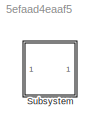
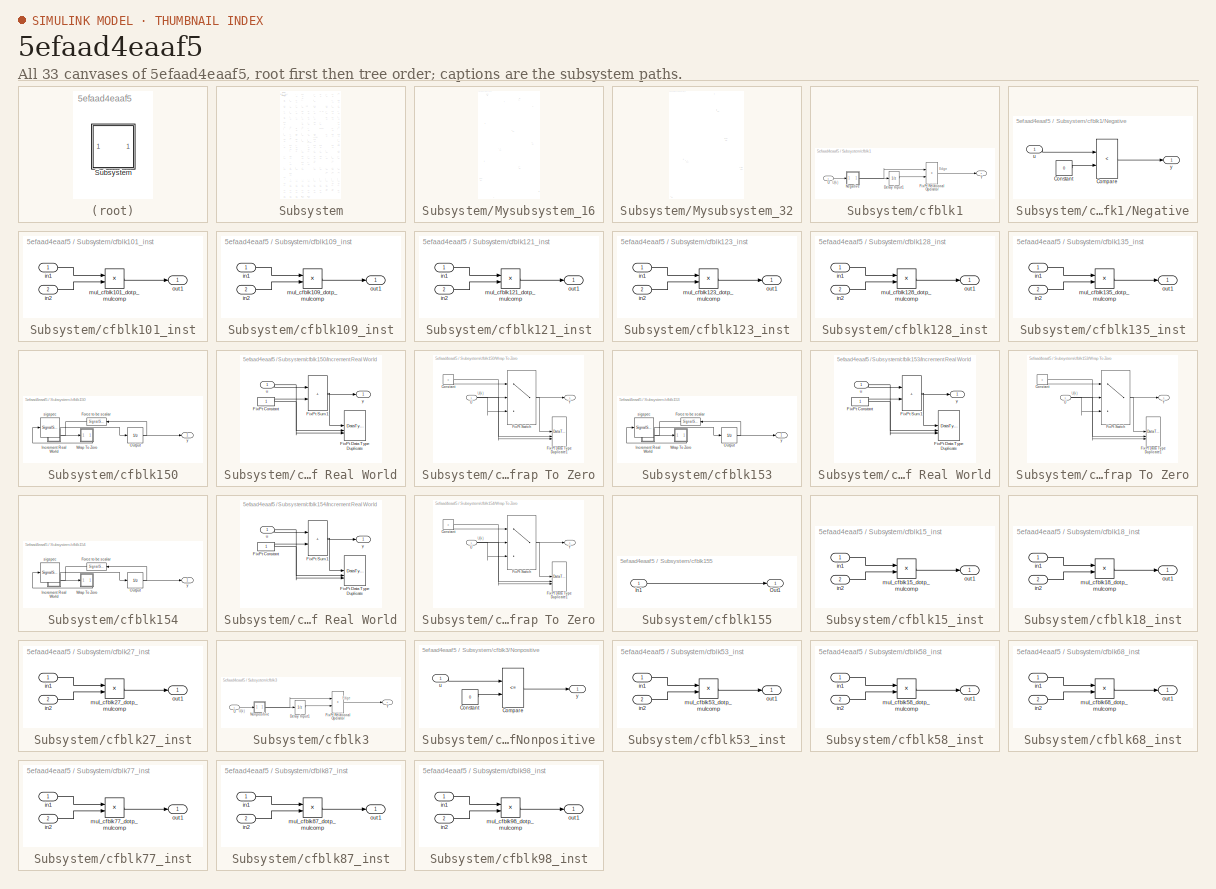
[diagram: thumbnail index - all 33 canvases of the model, root first then tree order]
MODEL slx_5efaad4eaaf5
KIND model
CONFIG AbsTol = auto
CONFIG EnableMultiTasking = off
CONFIG FixedStep = auto
CONFIG MaxStep = auto
CONFIG MinStep = auto
CONFIG RelTol = 1e-3
CONFIG SampleTimeConstraint = Unconstrained
CONFIG SolverName = VariableStepAuto
CONFIG StartTime = 0.0
CONFIG StopTime = 10.0
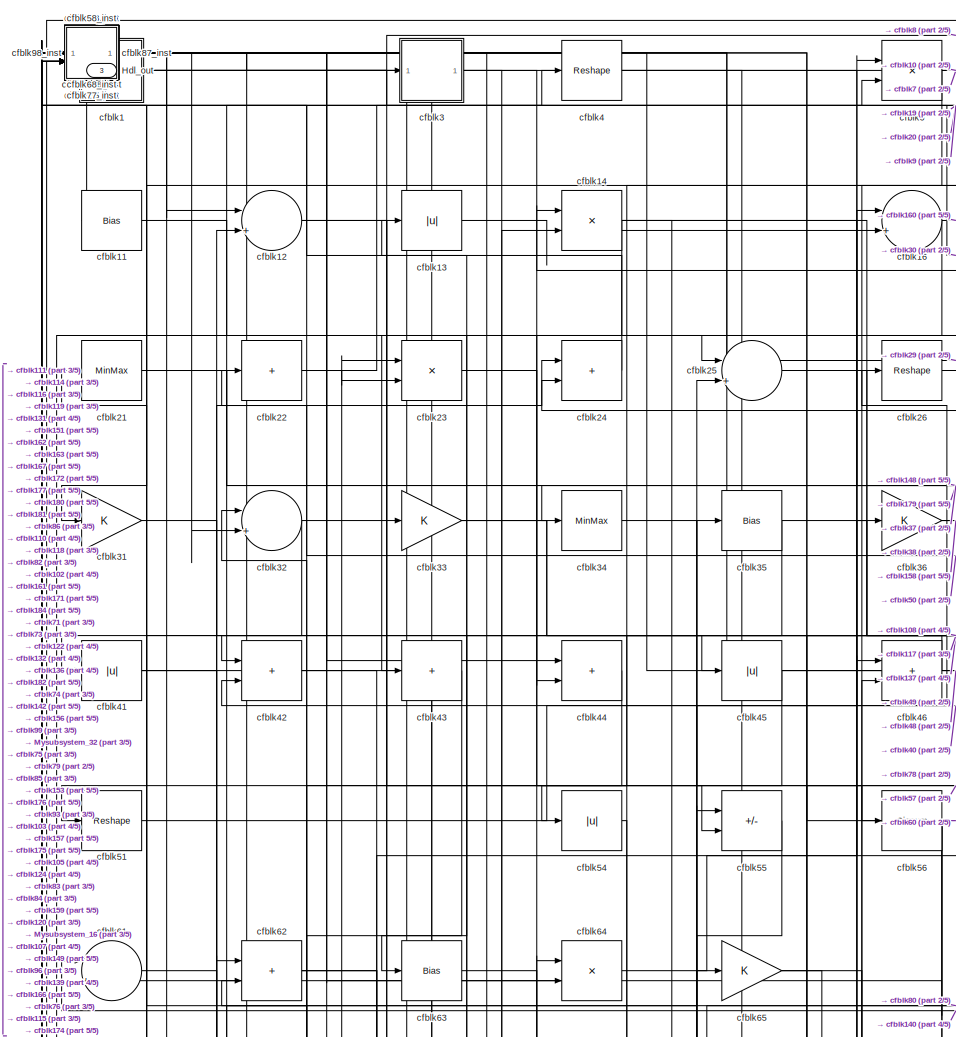
[diagram: Subsystem - part 1/5, top left region]
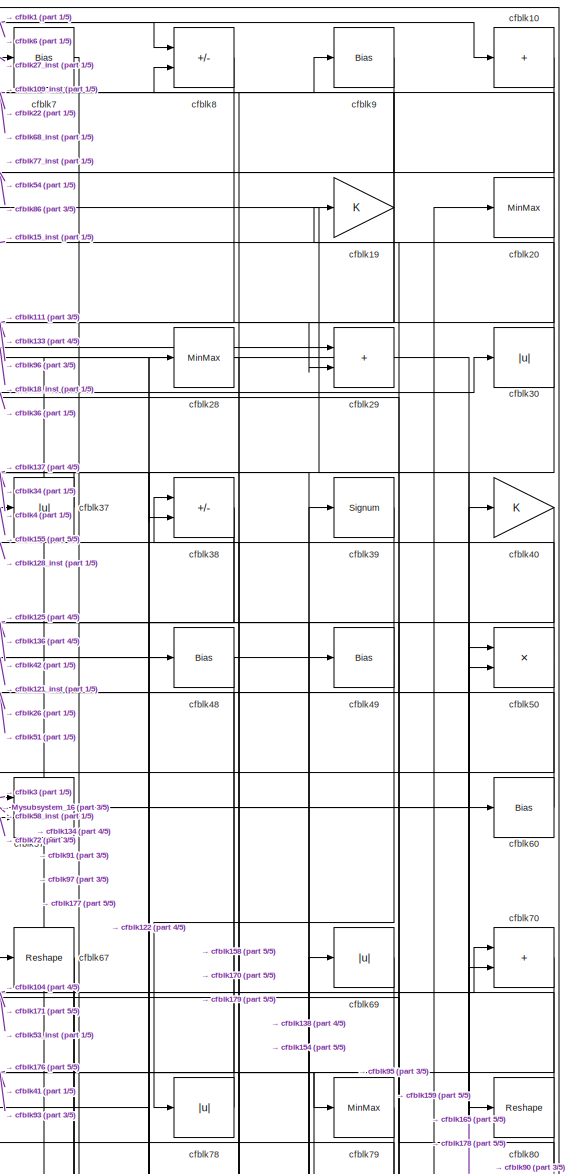
[diagram: Subsystem - part 2/5, top right region]
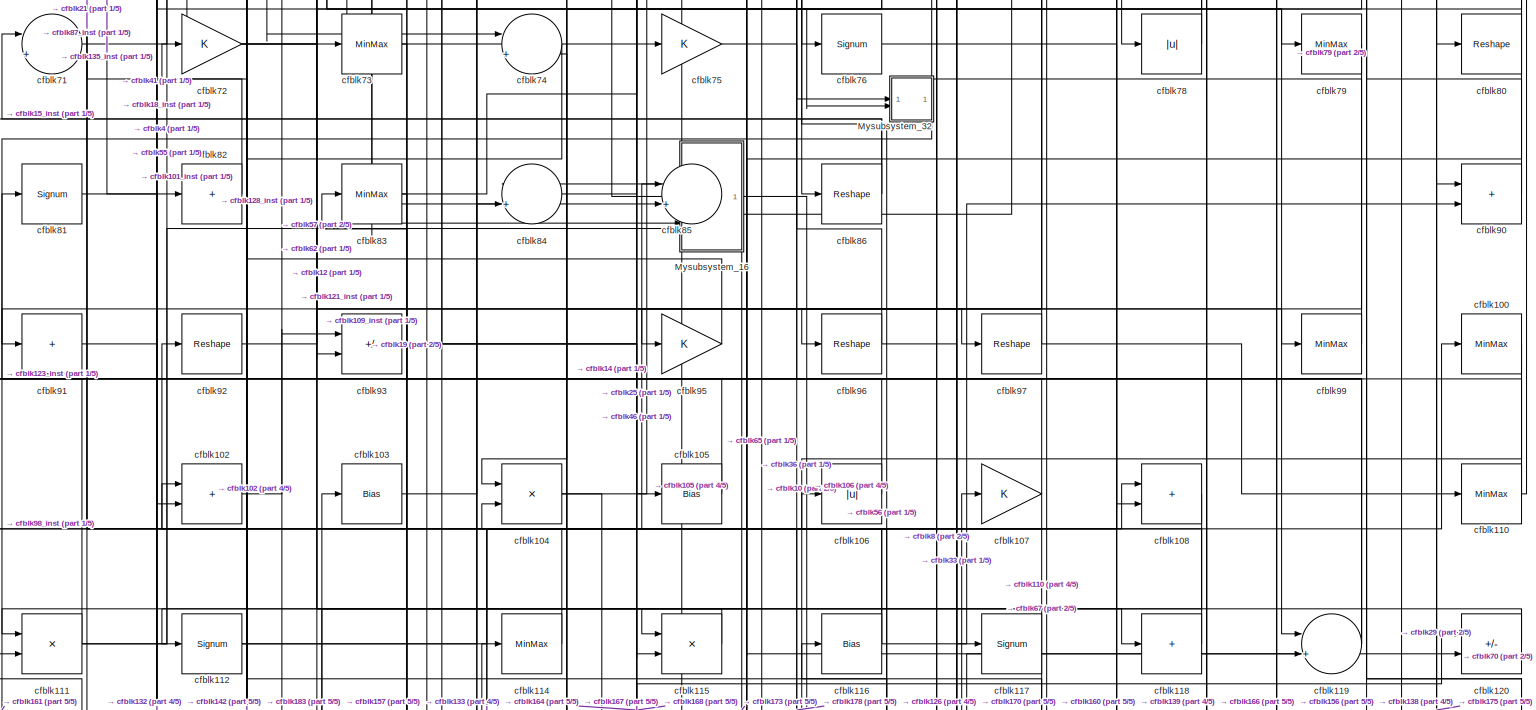
[diagram: Subsystem - part 3/5, full width, middle band]
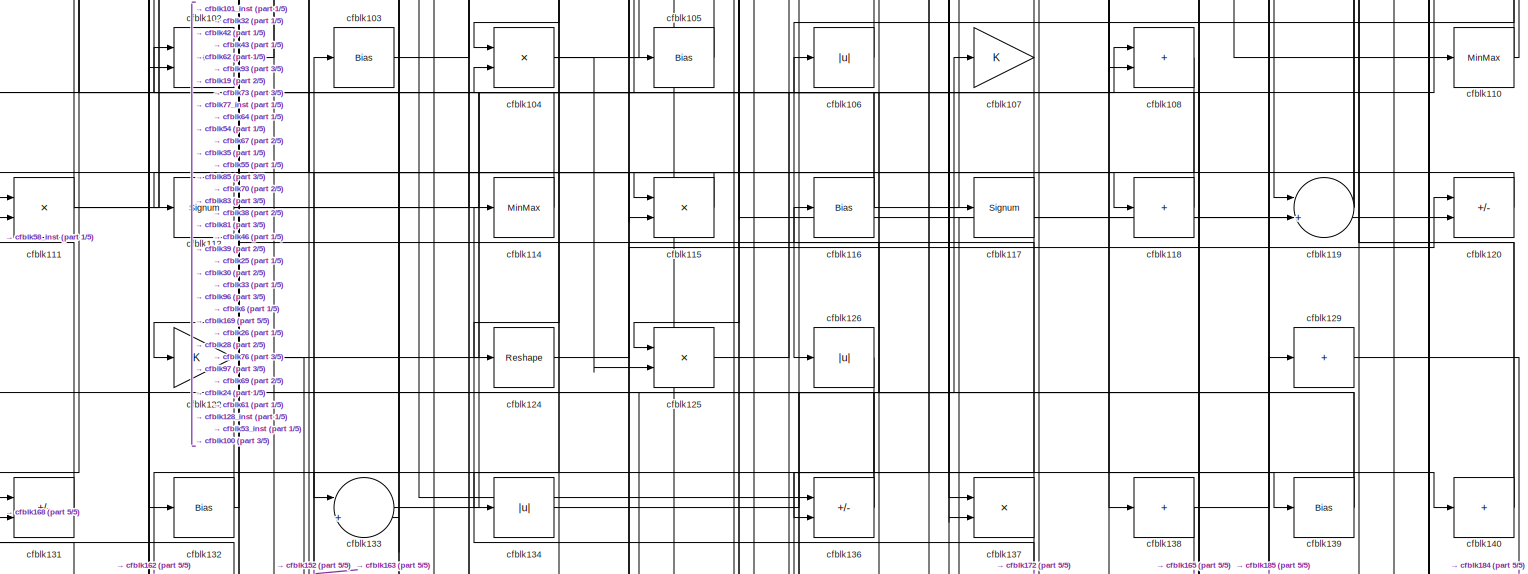
[diagram: Subsystem - part 4/5, full width, middle band]
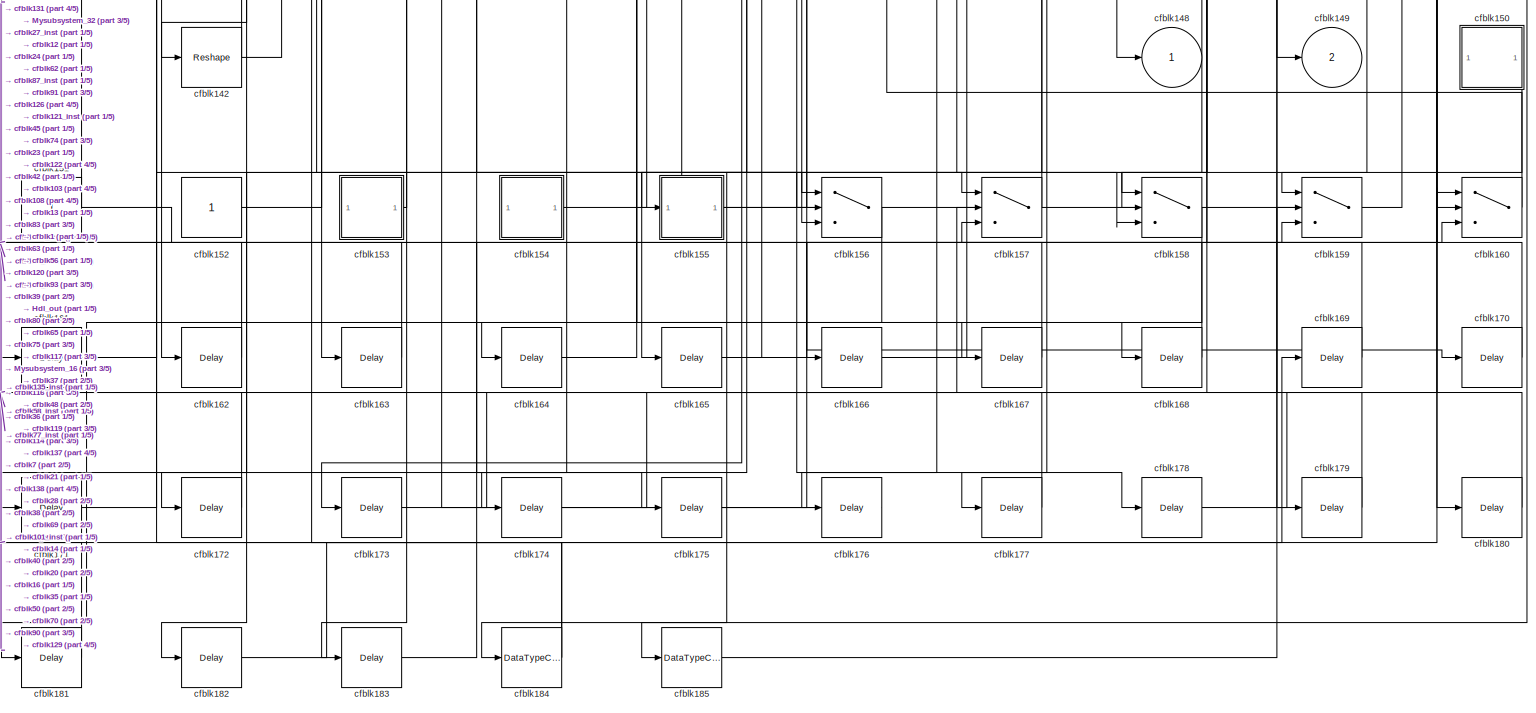
[diagram: Subsystem - part 5/5, full width, bottom band]
BLOCK [SubSystem] Subsystem
BLOCK [Outport] Subsystem/Hdl_out
  OutDataTypeStr = uint8
  Port = 3
  SampleTime = 1
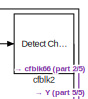
[diagram: Subsystem/Mysubsystem_16 - part 1/5, top left region]
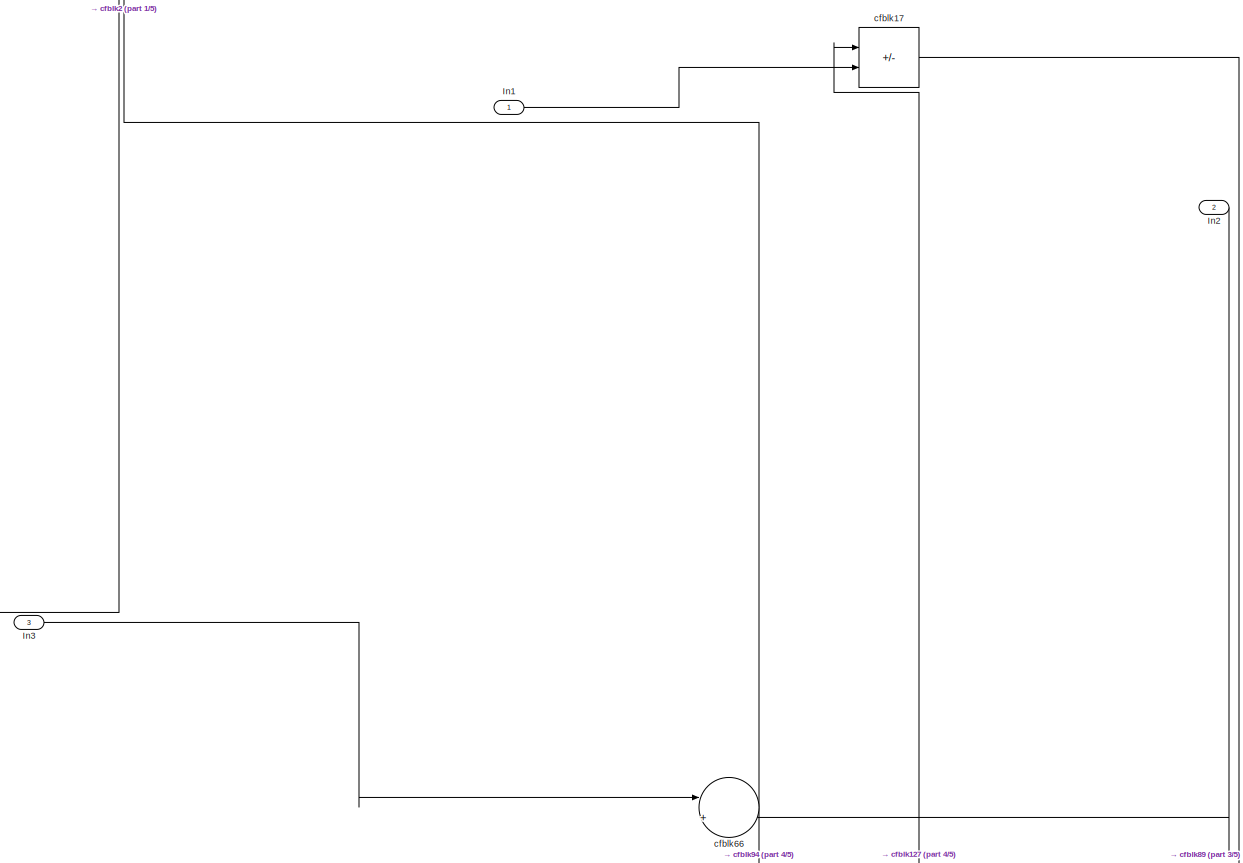
[diagram: Subsystem/Mysubsystem_16 - part 2/5, full width, top band]
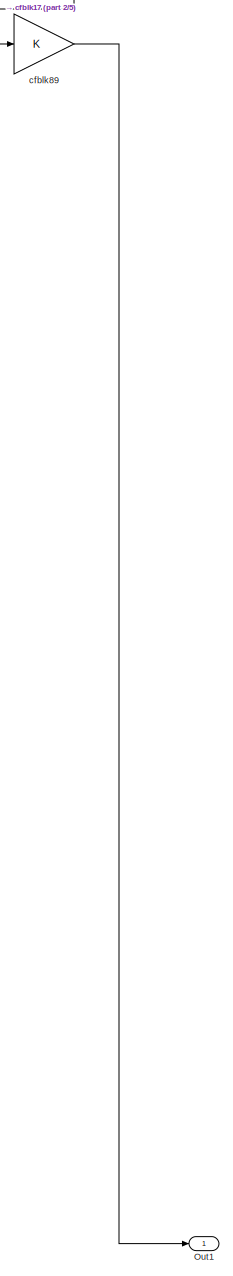
[diagram: Subsystem/Mysubsystem_16 - part 3/5, bottom right region]
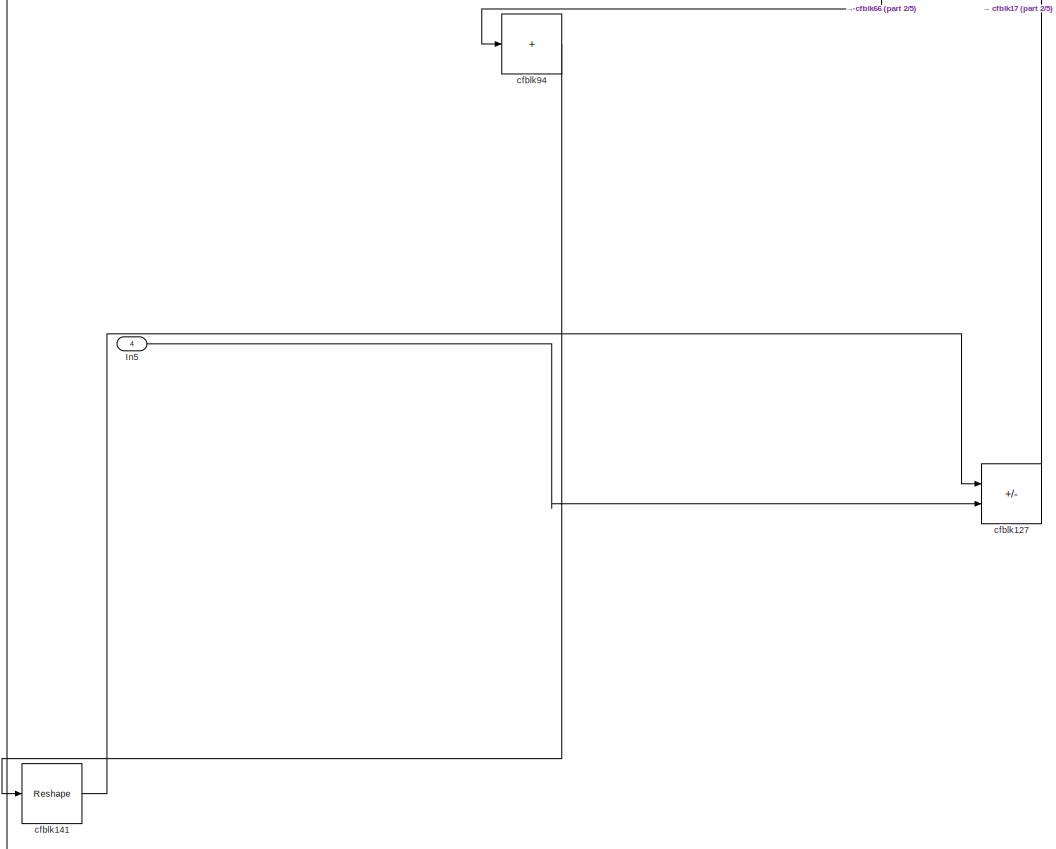
[diagram: Subsystem/Mysubsystem_16 - part 4/5, bottom center region]
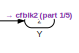
[diagram: Subsystem/Mysubsystem_16 - part 5/5, bottom left region]
BLOCK [SubSystem] Subsystem/Mysubsystem_16
BLOCK [Inport] Subsystem/Mysubsystem_16/In1
  OutDataTypeStr = uint8
  PortDimensions = 1
  SampleTime = 1
BLOCK [Inport] Subsystem/Mysubsystem_16/In2
  OutDataTypeStr = uint8
  Port = 2
  PortDimensions = 1
  SampleTime = 1
BLOCK [Inport] Subsystem/Mysubsystem_16/In3
  OutDataTypeStr = uint8
  Port = 3
  PortDimensions = 1
  SampleTime = 1
BLOCK [Inport] Subsystem/Mysubsystem_16/In5
  OutDataTypeStr = uint8
  Port = 4
  PortDimensions = 1
  SampleTime = 1
BLOCK [Outport] Subsystem/Mysubsystem_16/Out1
  SampleTime = 1
BLOCK [Outport] Subsystem/Mysubsystem_16/Y
  Port = 2
  SampleTime = 1
BLOCK [Sum] Subsystem/Mysubsystem_16/cfblk127
  IconShape = rectangular
  Inputs = +-
BLOCK [Reshape] Subsystem/Mysubsystem_16/cfblk141
BLOCK [Sum] Subsystem/Mysubsystem_16/cfblk17
  IconShape = rectangular
  Inputs = +-
BLOCK [Reference] Subsystem/Mysubsystem_16/cfblk2  REF=simulink/Logic and Bit
Operations/Detect
Change
  LibrarySourceBlock = hdlsllib/Logic and Bit\nOperations/Detect\nChange
  SourceBlock = simulink/Logic and Bit\nOperations/Detect\nChange
  SourceType = Detect Change
BLOCK [Sum] Subsystem/Mysubsystem_16/cfblk66
  Inputs = |++
BLOCK [Gain] Subsystem/Mysubsystem_16/cfblk89
BLOCK [Sum] Subsystem/Mysubsystem_16/cfblk94
  IconShape = rectangular
  Inputs = +
BLOCK [SubSystem] Subsystem/Mysubsystem_32
BLOCK [Inport] Subsystem/Mysubsystem_32/In1
  OutDataTypeStr = uint8
  PortDimensions = 1
  SampleTime = 1
BLOCK [Inport] Subsystem/Mysubsystem_32/In2
  OutDataTypeStr = uint8
  Port = 2
  PortDimensions = 1
  SampleTime = 1
BLOCK [Outport] Subsystem/Mysubsystem_32/Out1
  SampleTime = 1
BLOCK [Sum] Subsystem/Mysubsystem_32/cfblk113
  IconShape = rectangular
  Inputs = +
BLOCK [Signum] Subsystem/Mysubsystem_32/cfblk130
BLOCK [Sum] Subsystem/Mysubsystem_32/cfblk47
  Inputs = |++
BLOCK [Reshape] Subsystem/Mysubsystem_32/cfblk88
BLOCK [SubSystem] Subsystem/cfblk1
BLOCK [UnitDelay] Subsystem/cfblk1/Delay Input1
  Description = Store in Global RAM
  DisableCoverage = on
  HasFrameUpgradeWarning = on
  InitialCondition = vinit
  SampleTime = -1
BLOCK [RelationalOperator] Subsystem/cfblk1/FixPt Relational Operator
  InputSameDT = off
  Operator = >
  OutDataTypeStr = fixdt(0, 8)
  ZeroCross = off
BLOCK [SubSystem] Subsystem/cfblk1/Negative
BLOCK [RelationalOperator] Subsystem/cfblk1/Negative/Compare
  Operator = <
  OutDataTypeStr = boolean
  ZeroCross = off
BLOCK [Constant] Subsystem/cfblk1/Negative/Constant
  DisableCoverage = on
  OutDataTypeStr = Inherit: Inherit via back propagation
  PreserveConstantTs = on
  SampleTime = -1
  Value = 0
BLOCK [Inport] Subsystem/cfblk1/Negative/u
  OutDataTypeStr = uint8
  SampleTime = 1
BLOCK [Outport] Subsystem/cfblk1/Negative/y
  SampleTime = 1
BLOCK [Inport] Subsystem/cfblk1/U
  OutDataTypeStr = uint8
  SampleTime = 1
BLOCK [Outport] Subsystem/cfblk1/Y
  SampleTime = 1
BLOCK [Sum] Subsystem/cfblk10
  IconShape = rectangular
  Inputs = +
  OutDataTypeStr = uint8
BLOCK [MinMax] Subsystem/cfblk100
  OutDataTypeStr = uint8
BLOCK [SubSystem] Subsystem/cfblk101_inst
BLOCK [Inport] Subsystem/cfblk101_inst/in1
  OutDataTypeStr = uint8
  SampleTime = 1
BLOCK [Inport] Subsystem/cfblk101_inst/in2
  OutDataTypeStr = uint8
  Port = 2
  SampleTime = 1
BLOCK [Product] Subsystem/cfblk101_inst/mul_cfblk101_dotp_mulcomp
  Inputs = **
  OutDataTypeStr = uint8
  SampleTime = 1
BLOCK [Outport] Subsystem/cfblk101_inst/out1
  OutDataTypeStr = uint8
  SampleTime = 1
BLOCK [Sum] Subsystem/cfblk102
  IconShape = rectangular
  OutDataTypeStr = uint8
BLOCK [Bias] Subsystem/cfblk103
  Bias = 0.0
  SaturateOnIntegerOverflow = off
BLOCK [Product] Subsystem/cfblk104
  Inputs = */
  OutDataTypeStr = uint8
  RndMeth = Zero
  SaturateOnIntegerOverflow = on
BLOCK [Bias] Subsystem/cfblk105
  Bias = 0.0
  SaturateOnIntegerOverflow = off
BLOCK [Abs] Subsystem/cfblk106
  OutDataTypeStr = uint8
  SaturateOnIntegerOverflow = off
BLOCK [Gain] Subsystem/cfblk107
  OutDataTypeStr = uint8
BLOCK [Sum] Subsystem/cfblk108
  IconShape = rectangular
  OutDataTypeStr = uint8
BLOCK [SubSystem] Subsystem/cfblk109_inst
BLOCK [Inport] Subsystem/cfblk109_inst/in1
  OutDataTypeStr = uint8
  SampleTime = 1
BLOCK [Inport] Subsystem/cfblk109_inst/in2
  OutDataTypeStr = uint8
  Port = 2
  SampleTime = 1
BLOCK [Product] Subsystem/cfblk109_inst/mul_cfblk109_dotp_mulcomp
  Inputs = **
  OutDataTypeStr = uint8
  SampleTime = 1
BLOCK [Outport] Subsystem/cfblk109_inst/out1
  OutDataTypeStr = uint8
  SampleTime = 1
BLOCK [Bias] Subsystem/cfblk11
  Bias = 0.0
  SaturateOnIntegerOverflow = off
BLOCK [MinMax] Subsystem/cfblk110
  OutDataTypeStr = uint8
BLOCK [Product] Subsystem/cfblk111
  Inputs = */
  OutDataTypeStr = uint8
  RndMeth = Zero
  SaturateOnIntegerOverflow = on
BLOCK [Signum] Subsystem/cfblk112
BLOCK [MinMax] Subsystem/cfblk114
  OutDataTypeStr = uint8
BLOCK [Product] Subsystem/cfblk115
  Inputs = */
  OutDataTypeStr = uint8
  RndMeth = Zero
  SaturateOnIntegerOverflow = on
BLOCK [Bias] Subsystem/cfblk116
  Bias = 0.0
  SaturateOnIntegerOverflow = off
BLOCK [Signum] Subsystem/cfblk117
BLOCK [Sum] Subsystem/cfblk118
  IconShape = rectangular
  Inputs = +
  OutDataTypeStr = uint8
BLOCK [Sum] Subsystem/cfblk119
  Inputs = |++
  OutDataTypeStr = uint8
BLOCK [Sum] Subsystem/cfblk12
  Inputs = |++
  OutDataTypeStr = uint8
BLOCK [Sum] Subsystem/cfblk120
  IconShape = rectangular
  Inputs = +-
  OutDataTypeStr = uint8
BLOCK [SubSystem] Subsystem/cfblk121_inst
BLOCK [Inport] Subsystem/cfblk121_inst/in1
  OutDataTypeStr = uint8
  SampleTime = 1
BLOCK [Inport] Subsystem/cfblk121_inst/in2
  OutDataTypeStr = uint8
  Port = 2
  SampleTime = 1
BLOCK [Product] Subsystem/cfblk121_inst/mul_cfblk121_dotp_mulcomp
  Inputs = **
  OutDataTypeStr = uint8
  SampleTime = 1
BLOCK [Outport] Subsystem/cfblk121_inst/out1
  OutDataTypeStr = uint8
  SampleTime = 1
BLOCK [Gain] Subsystem/cfblk122
  OutDataTypeStr = uint8
BLOCK [SubSystem] Subsystem/cfblk123_inst
BLOCK [Inport] Subsystem/cfblk123_inst/in1
  OutDataTypeStr = uint8
  SampleTime = 1
BLOCK [Inport] Subsystem/cfblk123_inst/in2
  OutDataTypeStr = uint8
  Port = 2
  SampleTime = 1
BLOCK [Product] Subsystem/cfblk123_inst/mul_cfblk123_dotp_mulcomp
  Inputs = **
  OutDataTypeStr = uint8
  SampleTime = 1
BLOCK [Outport] Subsystem/cfblk123_inst/out1
  OutDataTypeStr = uint8
  SampleTime = 1
BLOCK [Reshape] Subsystem/cfblk124
BLOCK [Product] Subsystem/cfblk125
  Inputs = */
  OutDataTypeStr = uint8
  RndMeth = Zero
  SaturateOnIntegerOverflow = on
BLOCK [Abs] Subsystem/cfblk126
  OutDataTypeStr = uint8
  SaturateOnIntegerOverflow = off
BLOCK [SubSystem] Subsystem/cfblk128_inst
BLOCK [Inport] Subsystem/cfblk128_inst/in1
  OutDataTypeStr = uint8
  SampleTime = 1
BLOCK [Inport] Subsystem/cfblk128_inst/in2
  OutDataTypeStr = uint8
  Port = 2
  SampleTime = 1
BLOCK [Product] Subsystem/cfblk128_inst/mul_cfblk128_dotp_mulcomp
  Inputs = **
  OutDataTypeStr = uint8
  SampleTime = 1
BLOCK [Outport] Subsystem/cfblk128_inst/out1
  OutDataTypeStr = uint8
  SampleTime = 1
BLOCK [Sum] Subsystem/cfblk129
  IconShape = rectangular
  Inputs = +
  OutDataTypeStr = uint8
BLOCK [Abs] Subsystem/cfblk13
  OutDataTypeStr = uint8
  SaturateOnIntegerOverflow = off
BLOCK [Sum] Subsystem/cfblk131
  IconShape = rectangular
  Inputs = +-
  OutDataTypeStr = uint8
BLOCK [Bias] Subsystem/cfblk132
  Bias = 0.0
  SaturateOnIntegerOverflow = off
BLOCK [Sum] Subsystem/cfblk133
  Inputs = |++
  OutDataTypeStr = uint8
BLOCK [Abs] Subsystem/cfblk134
  OutDataTypeStr = uint8
  SaturateOnIntegerOverflow = off
BLOCK [SubSystem] Subsystem/cfblk135_inst
BLOCK [Inport] Subsystem/cfblk135_inst/in1
  OutDataTypeStr = uint8
  SampleTime = 1
BLOCK [Inport] Subsystem/cfblk135_inst/in2
  OutDataTypeStr = uint8
  Port = 2
  SampleTime = 1
BLOCK [Product] Subsystem/cfblk135_inst/mul_cfblk135_dotp_mulcomp
  Inputs = **
  OutDataTypeStr = uint8
  SampleTime = 1
BLOCK [Outport] Subsystem/cfblk135_inst/out1
  OutDataTypeStr = uint8
  SampleTime = 1
BLOCK [Sum] Subsystem/cfblk136
  IconShape = rectangular
  Inputs = +-
  OutDataTypeStr = uint8
BLOCK [Product] Subsystem/cfblk137
  Inputs = */
  OutDataTypeStr = uint8
  RndMeth = Zero
  SaturateOnIntegerOverflow = on
BLOCK [Sum] Subsystem/cfblk138
  IconShape = rectangular
  Inputs = +
  OutDataTypeStr = uint8
BLOCK [Bias] Subsystem/cfblk139
  Bias = 0.0
  SaturateOnIntegerOverflow = off
BLOCK [Product] Subsystem/cfblk14
  Inputs = */
  OutDataTypeStr = uint8
  RndMeth = Zero
  SaturateOnIntegerOverflow = on
BLOCK [Sum] Subsystem/cfblk140
  IconShape = rectangular
  Inputs = +
  OutDataTypeStr = uint8
BLOCK [Reshape] Subsystem/cfblk142
BLOCK [Outport] Subsystem/cfblk148
  OutDataTypeStr = uint8
  SampleTime = 1
  VectorParamsAs1DForOutWhenUnconnected = off
BLOCK [Outport] Subsystem/cfblk149
  OutDataTypeStr = uint8
  Port = 2
  SampleTime = 1
  VectorParamsAs1DForOutWhenUnconnected = off
BLOCK [SubSystem] Subsystem/cfblk150
BLOCK [SignalSpecification] Subsystem/cfblk150/Force to be scalar
  Dimensions = 1
  DisableCoverage = on
BLOCK [SubSystem] Subsystem/cfblk150/Increment Real World
BLOCK [Constant] Subsystem/cfblk150/Increment Real World/FixPt Constant
  DisableCoverage = on
  OutDataTypeStr = Inherit: Inherit via back propagation
  SampleTime = -1
BLOCK [DataTypeDuplicate] Subsystem/cfblk150/Increment Real World/FixPt Data Type Duplicate
  DisableCoverage = on
  NumInputPorts = 3
BLOCK [Sum] Subsystem/cfblk150/Increment Real World/FixPt Sum1
  IconShape = rectangular
  InputSameDT = on
  LockScale = on
  OutDataTypeStr = Inherit: Inherit via back propagation
BLOCK [Inport] Subsystem/cfblk150/Increment Real World/u
  OutDataTypeStr = uint16
  SampleTime = 1
BLOCK [Outport] Subsystem/cfblk150/Increment Real World/y
  SampleTime = 1
BLOCK [UnitDelay] Subsystem/cfblk150/Output
  HasFrameUpgradeWarning = on
  InitialCondition = 0.0
  SampleTime = tsamp
BLOCK [SubSystem] Subsystem/cfblk150/Wrap To Zero
BLOCK [Constant] Subsystem/cfblk150/Wrap To Zero/Constant
  DisableCoverage = on
  OutDataTypeStr = Inherit: Inherit via back propagation
  SampleTime = -1
  Value = 0
BLOCK [DataTypeDuplicate] Subsystem/cfblk150/Wrap To Zero/FixPt Data Type Duplicate1
  DisableCoverage = on
  NumInputPorts = 3
BLOCK [Switch] Subsystem/cfblk150/Wrap To Zero/FixPt Switch
  Criteria = u2 > Threshold
  InputSameDT = off
  OutDataTypeStr = Inherit: Inherit via back propagation
  SaturateOnIntegerOverflow = off
  Threshold = Threshold
  ZeroCross = off
BLOCK [Inport] Subsystem/cfblk150/Wrap To Zero/U
  OutDataTypeStr = uint16
  SampleTime = 1
BLOCK [Outport] Subsystem/cfblk150/Wrap To Zero/Y
  SampleTime = 1
BLOCK [SignalSpecification] Subsystem/cfblk150/sigspec
  Dimensions = 1
  OutDataTypeStr = uint16
BLOCK [Outport] Subsystem/cfblk150/y
  SampleTime = 1
BLOCK [Constant] Subsystem/cfblk151
  OutDataTypeStr = uint8
  SampleTime = -1
BLOCK [Constant] Subsystem/cfblk152
  OutDataTypeStr = uint8
  SampleTime = -1
BLOCK [SubSystem] Subsystem/cfblk153
BLOCK [SignalSpecification] Subsystem/cfblk153/Force to be scalar
  Dimensions = 1
  DisableCoverage = on
BLOCK [SubSystem] Subsystem/cfblk153/Increment Real World
BLOCK [Constant] Subsystem/cfblk153/Increment Real World/FixPt Constant
  DisableCoverage = on
  OutDataTypeStr = Inherit: Inherit via back propagation
  SampleTime = -1
BLOCK [DataTypeDuplicate] Subsystem/cfblk153/Increment Real World/FixPt Data Type Duplicate
  DisableCoverage = on
  NumInputPorts = 3
BLOCK [Sum] Subsystem/cfblk153/Increment Real World/FixPt Sum1
  IconShape = rectangular
  InputSameDT = on
  LockScale = on
  OutDataTypeStr = Inherit: Inherit via back propagation
BLOCK [Inport] Subsystem/cfblk153/Increment Real World/u
  OutDataTypeStr = uint16
  SampleTime = 1
BLOCK [Outport] Subsystem/cfblk153/Increment Real World/y
  SampleTime = 1
BLOCK [UnitDelay] Subsystem/cfblk153/Output
  HasFrameUpgradeWarning = on
  InitialCondition = 0.0
  SampleTime = tsamp
BLOCK [SubSystem] Subsystem/cfblk153/Wrap To Zero
BLOCK [Constant] Subsystem/cfblk153/Wrap To Zero/Constant
  DisableCoverage = on
  OutDataTypeStr = Inherit: Inherit via back propagation
  SampleTime = -1
  Value = 0
BLOCK [DataTypeDuplicate] Subsystem/cfblk153/Wrap To Zero/FixPt Data Type Duplicate1
  DisableCoverage = on
  NumInputPorts = 3
BLOCK [Switch] Subsystem/cfblk153/Wrap To Zero/FixPt Switch
  Criteria = u2 > Threshold
  InputSameDT = off
  OutDataTypeStr = Inherit: Inherit via back propagation
  SaturateOnIntegerOverflow = off
  Threshold = Threshold
  ZeroCross = off
BLOCK [Inport] Subsystem/cfblk153/Wrap To Zero/U
  OutDataTypeStr = uint16
  SampleTime = 1
BLOCK [Outport] Subsystem/cfblk153/Wrap To Zero/Y
  SampleTime = 1
BLOCK [SignalSpecification] Subsystem/cfblk153/sigspec
  Dimensions = 1
  OutDataTypeStr = uint16
BLOCK [Outport] Subsystem/cfblk153/y
  SampleTime = 1
BLOCK [SubSystem] Subsystem/cfblk154
BLOCK [SignalSpecification] Subsystem/cfblk154/Force to be scalar
  Dimensions = 1
  DisableCoverage = on
BLOCK [SubSystem] Subsystem/cfblk154/Increment Real World
BLOCK [Constant] Subsystem/cfblk154/Increment Real World/FixPt Constant
  DisableCoverage = on
  OutDataTypeStr = Inherit: Inherit via back propagation
  SampleTime = -1
BLOCK [DataTypeDuplicate] Subsystem/cfblk154/Increment Real World/FixPt Data Type Duplicate
  DisableCoverage = on
  NumInputPorts = 3
BLOCK [Sum] Subsystem/cfblk154/Increment Real World/FixPt Sum1
  IconShape = rectangular
  InputSameDT = on
  LockScale = on
  OutDataTypeStr = Inherit: Inherit via back propagation
BLOCK [Inport] Subsystem/cfblk154/Increment Real World/u
  OutDataTypeStr = uint16
  SampleTime = 1
BLOCK [Outport] Subsystem/cfblk154/Increment Real World/y
  SampleTime = 1
BLOCK [UnitDelay] Subsystem/cfblk154/Output
  HasFrameUpgradeWarning = on
  InitialCondition = 0.0
  SampleTime = tsamp
BLOCK [SubSystem] Subsystem/cfblk154/Wrap To Zero
BLOCK [Constant] Subsystem/cfblk154/Wrap To Zero/Constant
  DisableCoverage = on
  OutDataTypeStr = Inherit: Inherit via back propagation
  SampleTime = -1
  Value = 0
BLOCK [DataTypeDuplicate] Subsystem/cfblk154/Wrap To Zero/FixPt Data Type Duplicate1
  DisableCoverage = on
  NumInputPorts = 3
BLOCK [Switch] Subsystem/cfblk154/Wrap To Zero/FixPt Switch
  Criteria = u2 > Threshold
  InputSameDT = off
  OutDataTypeStr = Inherit: Inherit via back propagation
  SaturateOnIntegerOverflow = off
  Threshold = Threshold
  ZeroCross = off
BLOCK [Inport] Subsystem/cfblk154/Wrap To Zero/U
  OutDataTypeStr = uint16
  SampleTime = 1
BLOCK [Outport] Subsystem/cfblk154/Wrap To Zero/Y
  SampleTime = 1
BLOCK [SignalSpecification] Subsystem/cfblk154/sigspec
  Dimensions = 1
  OutDataTypeStr = uint16
BLOCK [Outport] Subsystem/cfblk154/y
  SampleTime = 1
BLOCK [SubSystem] Subsystem/cfblk155
BLOCK [Inport] Subsystem/cfblk155/In1
  OutDataTypeStr = uint8
  PortDimensions = 1
  SampleTime = 1
BLOCK [Outport] Subsystem/cfblk155/Out1
  SampleTime = 1
BLOCK [Switch] Subsystem/cfblk156
  InputSameDT = off
  OutDataTypeStr = uint8
  SaturateOnIntegerOverflow = off
BLOCK [Switch] Subsystem/cfblk157
  InputSameDT = off
  OutDataTypeStr = uint8
  SaturateOnIntegerOverflow = off
BLOCK [Switch] Subsystem/cfblk158
  InputSameDT = off
  OutDataTypeStr = uint8
  SaturateOnIntegerOverflow = off
BLOCK [Switch] Subsystem/cfblk159
  InputSameDT = off
  OutDataTypeStr = uint8
  SaturateOnIntegerOverflow = off
BLOCK [SubSystem] Subsystem/cfblk15_inst
BLOCK [Inport] Subsystem/cfblk15_inst/in1
  OutDataTypeStr = uint8
  SampleTime = 1
BLOCK [Inport] Subsystem/cfblk15_inst/in2
  OutDataTypeStr = uint8
  Port = 2
  SampleTime = 1
BLOCK [Product] Subsystem/cfblk15_inst/mul_cfblk15_dotp_mulcomp
  Inputs = **
  OutDataTypeStr = uint8
  SampleTime = 1
BLOCK [Outport] Subsystem/cfblk15_inst/out1
  OutDataTypeStr = uint8
  SampleTime = 1
BLOCK [Sum] Subsystem/cfblk16
  Inputs = |++
  OutDataTypeStr = uint8
BLOCK [Switch] Subsystem/cfblk160
  InputSameDT = off
  OutDataTypeStr = uint8
  SaturateOnIntegerOverflow = off
BLOCK [Delay] Subsystem/cfblk161
  InputPortMap = u0
  SampleTime = 1
BLOCK [Delay] Subsystem/cfblk162
  InputPortMap = u0
  SampleTime = 1
BLOCK [Delay] Subsystem/cfblk163
  InputPortMap = u0
  SampleTime = 1
BLOCK [Delay] Subsystem/cfblk164
  InputPortMap = u0
  SampleTime = 1
BLOCK [Delay] Subsystem/cfblk165
  InputPortMap = u0
  SampleTime = 1
BLOCK [Delay] Subsystem/cfblk166
  InputPortMap = u0
  SampleTime = 1
BLOCK [Delay] Subsystem/cfblk167
  InputPortMap = u0
  SampleTime = 1
BLOCK [Delay] Subsystem/cfblk168
  InputPortMap = u0
  SampleTime = 1
BLOCK [Delay] Subsystem/cfblk169
  InputPortMap = u0
  SampleTime = 1
BLOCK [Delay] Subsystem/cfblk170
  InputPortMap = u0
  SampleTime = 1
BLOCK [Delay] Subsystem/cfblk171
  InputPortMap = u0
  SampleTime = 1
BLOCK [Delay] Subsystem/cfblk172
  InputPortMap = u0
  SampleTime = 1
BLOCK [Delay] Subsystem/cfblk173
  InputPortMap = u0
  SampleTime = 1
BLOCK [Delay] Subsystem/cfblk174
  InputPortMap = u0
  SampleTime = 1
BLOCK [Delay] Subsystem/cfblk175
  InputPortMap = u0
  SampleTime = 1
BLOCK [Delay] Subsystem/cfblk176
  InputPortMap = u0
  SampleTime = 1
BLOCK [Delay] Subsystem/cfblk177
  InputPortMap = u0
  SampleTime = 1
BLOCK [Delay] Subsystem/cfblk178
  InputPortMap = u0
  SampleTime = 1
BLOCK [Delay] Subsystem/cfblk179
  InputPortMap = u0
  SampleTime = 1
BLOCK [Delay] Subsystem/cfblk180
  InputPortMap = u0
  SampleTime = 1
BLOCK [Delay] Subsystem/cfblk181
  InputPortMap = u0
  SampleTime = 1
BLOCK [Delay] Subsystem/cfblk182
  InputPortMap = u0
  SampleTime = 1
BLOCK [Delay] Subsystem/cfblk183
  InputPortMap = u0
  SampleTime = 1
BLOCK [DataTypeConversion] Subsystem/cfblk184
  OutDataTypeStr = uint8
  RndMeth = Floor
  SaturateOnIntegerOverflow = off
BLOCK [DataTypeConversion] Subsystem/cfblk185
  OutDataTypeStr = uint8
  RndMeth = Floor
  SaturateOnIntegerOverflow = off
BLOCK [SubSystem] Subsystem/cfblk18_inst
BLOCK [Inport] Subsystem/cfblk18_inst/in1
  OutDataTypeStr = uint8
  SampleTime = 1
BLOCK [Inport] Subsystem/cfblk18_inst/in2
  OutDataTypeStr = uint8
  Port = 2
  SampleTime = 1
BLOCK [Product] Subsystem/cfblk18_inst/mul_cfblk18_dotp_mulcomp
  Inputs = **
  OutDataTypeStr = uint8
  SampleTime = 1
BLOCK [Outport] Subsystem/cfblk18_inst/out1
  OutDataTypeStr = uint8
  SampleTime = 1
BLOCK [Gain] Subsystem/cfblk19
  OutDataTypeStr = uint8
BLOCK [MinMax] Subsystem/cfblk20
  OutDataTypeStr = uint8
BLOCK [MinMax] Subsystem/cfblk21
  OutDataTypeStr = uint8
BLOCK [Sum] Subsystem/cfblk22
  IconShape = rectangular
  Inputs = +
  OutDataTypeStr = uint8
BLOCK [Product] Subsystem/cfblk23
  Inputs = */
  OutDataTypeStr = uint8
  RndMeth = Zero
  SaturateOnIntegerOverflow = on
BLOCK [Sum] Subsystem/cfblk24
  IconShape = rectangular
  OutDataTypeStr = uint8
BLOCK [Sum] Subsystem/cfblk25
  Inputs = |++
  OutDataTypeStr = uint8
BLOCK [Reshape] Subsystem/cfblk26
BLOCK [SubSystem] Subsystem/cfblk27_inst
BLOCK [Inport] Subsystem/cfblk27_inst/in1
  OutDataTypeStr = uint8
  SampleTime = 1
BLOCK [Inport] Subsystem/cfblk27_inst/in2
  OutDataTypeStr = uint8
  Port = 2
  SampleTime = 1
BLOCK [Product] Subsystem/cfblk27_inst/mul_cfblk27_dotp_mulcomp
  Inputs = **
  OutDataTypeStr = uint8
  SampleTime = 1
BLOCK [Outport] Subsystem/cfblk27_inst/out1
  OutDataTypeStr = uint8
  SampleTime = 1
BLOCK [MinMax] Subsystem/cfblk28
  OutDataTypeStr = uint8
BLOCK [Sum] Subsystem/cfblk29
  IconShape = rectangular
  OutDataTypeStr = uint8
BLOCK [SubSystem] Subsystem/cfblk3
BLOCK [UnitDelay] Subsystem/cfblk3/Delay Input1
  Description = Store in Global RAM
  DisableCoverage = on
  HasFrameUpgradeWarning = on
  InitialCondition = vinit
  SampleTime = -1
BLOCK [RelationalOperator] Subsystem/cfblk3/FixPt Relational Operator
  InputSameDT = off
  Operator = >
  OutDataTypeStr = fixdt(0, 8)
  ZeroCross = off
BLOCK [SubSystem] Subsystem/cfblk3/Nonpositive
BLOCK [RelationalOperator] Subsystem/cfblk3/Nonpositive/Compare
  Operator = <=
  OutDataTypeStr = boolean
  ZeroCross = off
BLOCK [Constant] Subsystem/cfblk3/Nonpositive/Constant
  DisableCoverage = on
  OutDataTypeStr = Inherit: Inherit via back propagation
  PreserveConstantTs = on
  SampleTime = -1
  Value = 0
BLOCK [Inport] Subsystem/cfblk3/Nonpositive/u
  OutDataTypeStr = uint8
  SampleTime = 1
BLOCK [Outport] Subsystem/cfblk3/Nonpositive/y
  SampleTime = 1
BLOCK [Inport] Subsystem/cfblk3/U
  OutDataTypeStr = uint8
  SampleTime = 1
BLOCK [Outport] Subsystem/cfblk3/Y
  SampleTime = 1
BLOCK [Abs] Subsystem/cfblk30
  OutDataTypeStr = uint8
  SaturateOnIntegerOverflow = off
BLOCK [Gain] Subsystem/cfblk31
  OutDataTypeStr = uint8
BLOCK [Sum] Subsystem/cfblk32
  Inputs = |++
  OutDataTypeStr = uint8
BLOCK [Gain] Subsystem/cfblk33
  OutDataTypeStr = uint8
BLOCK [MinMax] Subsystem/cfblk34
  OutDataTypeStr = uint8
BLOCK [Bias] Subsystem/cfblk35
  Bias = 0.0
  SaturateOnIntegerOverflow = off
BLOCK [Gain] Subsystem/cfblk36
  OutDataTypeStr = uint8
BLOCK [Abs] Subsystem/cfblk37
  OutDataTypeStr = uint8
  SaturateOnIntegerOverflow = off
BLOCK [Sum] Subsystem/cfblk38
  IconShape = rectangular
  Inputs = +-
  OutDataTypeStr = uint8
BLOCK [Signum] Subsystem/cfblk39
BLOCK [Reshape] Subsystem/cfblk4
BLOCK [Gain] Subsystem/cfblk40
  OutDataTypeStr = uint8
BLOCK [Abs] Subsystem/cfblk41
  OutDataTypeStr = uint8
  SaturateOnIntegerOverflow = off
BLOCK [Sum] Subsystem/cfblk42
  IconShape = rectangular
  OutDataTypeStr = uint8
BLOCK [Sum] Subsystem/cfblk43
  IconShape = rectangular
  Inputs = +
  OutDataTypeStr = uint8
BLOCK [Sum] Subsystem/cfblk44
  IconShape = rectangular
  OutDataTypeStr = uint8
BLOCK [Abs] Subsystem/cfblk45
  OutDataTypeStr = uint8
  SaturateOnIntegerOverflow = off
BLOCK [Sum] Subsystem/cfblk46
  IconShape = rectangular
  OutDataTypeStr = uint8
BLOCK [Bias] Subsystem/cfblk48
  Bias = 0.0
  SaturateOnIntegerOverflow = off
BLOCK [Bias] Subsystem/cfblk49
  Bias = 0.0
  SaturateOnIntegerOverflow = off
BLOCK [Product] Subsystem/cfblk50
  Inputs = */
  OutDataTypeStr = uint8
  RndMeth = Zero
  SaturateOnIntegerOverflow = on
BLOCK [Reshape] Subsystem/cfblk51
BLOCK [SubSystem] Subsystem/cfblk53_inst
BLOCK [Inport] Subsystem/cfblk53_inst/in1
  OutDataTypeStr = uint8
  SampleTime = 1
BLOCK [Inport] Subsystem/cfblk53_inst/in2
  OutDataTypeStr = uint8
  Port = 2
  SampleTime = 1
BLOCK [Product] Subsystem/cfblk53_inst/mul_cfblk53_dotp_mulcomp
  Inputs = **
  OutDataTypeStr = uint8
  SampleTime = 1
BLOCK [Outport] Subsystem/cfblk53_inst/out1
  OutDataTypeStr = uint8
  SampleTime = 1
BLOCK [Abs] Subsystem/cfblk54
  OutDataTypeStr = uint8
  SaturateOnIntegerOverflow = off
BLOCK [Sum] Subsystem/cfblk55
  IconShape = rectangular
  Inputs = +-
  OutDataTypeStr = uint8
BLOCK [Signum] Subsystem/cfblk56
BLOCK [Product] Subsystem/cfblk57
  Inputs = */
  OutDataTypeStr = uint8
  RndMeth = Zero
  SaturateOnIntegerOverflow = on
BLOCK [SubSystem] Subsystem/cfblk58_inst
BLOCK [Inport] Subsystem/cfblk58_inst/in1
  OutDataTypeStr = uint8
  SampleTime = 1
BLOCK [Inport] Subsystem/cfblk58_inst/in2
  OutDataTypeStr = uint8
  Port = 2
  SampleTime = 1
BLOCK [Product] Subsystem/cfblk58_inst/mul_cfblk58_dotp_mulcomp
  Inputs = **
  OutDataTypeStr = uint8
  SampleTime = 1
BLOCK [Outport] Subsystem/cfblk58_inst/out1
  OutDataTypeStr = uint8
  SampleTime = 1
BLOCK [Product] Subsystem/cfblk6
  Inputs = */
  OutDataTypeStr = uint8
  RndMeth = Zero
  SaturateOnIntegerOverflow = on
BLOCK [Bias] Subsystem/cfblk60
  Bias = 0.0
  SaturateOnIntegerOverflow = off
BLOCK [Sum] Subsystem/cfblk61
  Inputs = |++
  OutDataTypeStr = uint8
BLOCK [Sum] Subsystem/cfblk62
  IconShape = rectangular
  OutDataTypeStr = uint8
BLOCK [Bias] Subsystem/cfblk63
  Bias = 0.0
  SaturateOnIntegerOverflow = off
BLOCK [Product] Subsystem/cfblk64
  Inputs = */
  OutDataTypeStr = uint8
  RndMeth = Zero
  SaturateOnIntegerOverflow = on
BLOCK [Gain] Subsystem/cfblk65
  OutDataTypeStr = uint8
BLOCK [Reshape] Subsystem/cfblk67
BLOCK [SubSystem] Subsystem/cfblk68_inst
BLOCK [Inport] Subsystem/cfblk68_inst/in1
  OutDataTypeStr = uint8
  SampleTime = 1
BLOCK [Inport] Subsystem/cfblk68_inst/in2
  OutDataTypeStr = uint8
  Port = 2
  SampleTime = 1
BLOCK [Product] Subsystem/cfblk68_inst/mul_cfblk68_dotp_mulcomp
  Inputs = **
  OutDataTypeStr = uint8
  SampleTime = 1
BLOCK [Outport] Subsystem/cfblk68_inst/out1
  OutDataTypeStr = uint8
  SampleTime = 1
BLOCK [Abs] Subsystem/cfblk69
  OutDataTypeStr = uint8
  SaturateOnIntegerOverflow = off
BLOCK [Bias] Subsystem/cfblk7
  Bias = 0.0
  SaturateOnIntegerOverflow = off
BLOCK [Sum] Subsystem/cfblk70
  IconShape = rectangular
  OutDataTypeStr = uint8
BLOCK [Sum] Subsystem/cfblk71
  Inputs = |++
  OutDataTypeStr = uint8
BLOCK [Gain] Subsystem/cfblk72
  OutDataTypeStr = uint8
BLOCK [MinMax] Subsystem/cfblk73
  OutDataTypeStr = uint8
BLOCK [Sum] Subsystem/cfblk74
  Inputs = |++
  OutDataTypeStr = uint8
BLOCK [Gain] Subsystem/cfblk75
  OutDataTypeStr = uint8
BLOCK [Signum] Subsystem/cfblk76
BLOCK [SubSystem] Subsystem/cfblk77_inst
BLOCK [Inport] Subsystem/cfblk77_inst/in1
  OutDataTypeStr = uint8
  SampleTime = 1
BLOCK [Inport] Subsystem/cfblk77_inst/in2
  OutDataTypeStr = uint8
  Port = 2
  SampleTime = 1
BLOCK [Product] Subsystem/cfblk77_inst/mul_cfblk77_dotp_mulcomp
  Inputs = **
  OutDataTypeStr = uint8
  SampleTime = 1
BLOCK [Outport] Subsystem/cfblk77_inst/out1
  OutDataTypeStr = uint8
  SampleTime = 1
BLOCK [Abs] Subsystem/cfblk78
  OutDataTypeStr = uint8
  SaturateOnIntegerOverflow = off
BLOCK [MinMax] Subsystem/cfblk79
  OutDataTypeStr = uint8
BLOCK [Sum] Subsystem/cfblk8
  IconShape = rectangular
  Inputs = +-
  OutDataTypeStr = uint8
BLOCK [Reshape] Subsystem/cfblk80
BLOCK [Signum] Subsystem/cfblk81
BLOCK [Sum] Subsystem/cfblk82
  IconShape = rectangular
  Inputs = +
  OutDataTypeStr = uint8
BLOCK [MinMax] Subsystem/cfblk83
  OutDataTypeStr = uint8
BLOCK [Sum] Subsystem/cfblk84
  Inputs = |++
  OutDataTypeStr = uint8
BLOCK [Sum] Subsystem/cfblk85
  Inputs = |++
  OutDataTypeStr = uint8
BLOCK [Reshape] Subsystem/cfblk86
BLOCK [SubSystem] Subsystem/cfblk87_inst
BLOCK [Inport] Subsystem/cfblk87_inst/in1
  OutDataTypeStr = uint8
  SampleTime = 1
BLOCK [Inport] Subsystem/cfblk87_inst/in2
  OutDataTypeStr = uint8
  Port = 2
  SampleTime = 1
BLOCK [Product] Subsystem/cfblk87_inst/mul_cfblk87_dotp_mulcomp
  Inputs = **
  OutDataTypeStr = uint8
  SampleTime = 1
BLOCK [Outport] Subsystem/cfblk87_inst/out1
  OutDataTypeStr = uint8
  SampleTime = 1
BLOCK [Bias] Subsystem/cfblk9
  Bias = 0.0
  SaturateOnIntegerOverflow = off
BLOCK [Sum] Subsystem/cfblk90
  IconShape = rectangular
  OutDataTypeStr = uint8
BLOCK [Sum] Subsystem/cfblk91
  IconShape = rectangular
  Inputs = +
  OutDataTypeStr = uint8
BLOCK [Reshape] Subsystem/cfblk92
BLOCK [Sum] Subsystem/cfblk93
  IconShape = rectangular
  Inputs = +-
  OutDataTypeStr = uint8
BLOCK [Gain] Subsystem/cfblk95
  OutDataTypeStr = uint8
BLOCK [Reshape] Subsystem/cfblk96
BLOCK [Reshape] Subsystem/cfblk97
BLOCK [SubSystem] Subsystem/cfblk98_inst
BLOCK [Inport] Subsystem/cfblk98_inst/in1
  OutDataTypeStr = uint8
  SampleTime = 1
BLOCK [Inport] Subsystem/cfblk98_inst/in2
  OutDataTypeStr = uint8
  Port = 2
  SampleTime = 1
BLOCK [Product] Subsystem/cfblk98_inst/mul_cfblk98_dotp_mulcomp
  Inputs = **
  OutDataTypeStr = uint8
  SampleTime = 1
BLOCK [Outport] Subsystem/cfblk98_inst/out1
  OutDataTypeStr = uint8
  SampleTime = 1
BLOCK [MinMax] Subsystem/cfblk99
  OutDataTypeStr = uint8
ANNOTATION Subsystem/cfblk1: Edge
ANNOTATION Subsystem/cfblk1: U(k)
ANNOTATION Subsystem/cfblk150/Wrap To Zero: U(k)
ANNOTATION Subsystem/cfblk153/Wrap To Zero: U(k)
ANNOTATION Subsystem/cfblk154/Wrap To Zero: U(k)
ANNOTATION Subsystem/cfblk3: Edge
ANNOTATION Subsystem/cfblk3: U(k)
LINE Subsystem/Mysubsystem_16/In1:1 -> Subsystem/Mysubsystem_16/cfblk17:2
LINE Subsystem/Mysubsystem_16/In2:1 -> Subsystem/Mysubsystem_16/cfblk66:2
LINE Subsystem/Mysubsystem_16/In3:1 -> Subsystem/Mysubsystem_16/cfblk66:1
LINE Subsystem/Mysubsystem_16/In5:1 -> Subsystem/Mysubsystem_16/cfblk127:2
LINE Subsystem/Mysubsystem_16/cfblk127:1 -> Subsystem/Mysubsystem_16/cfblk17:1
LINE Subsystem/Mysubsystem_16/cfblk141:1 -> Subsystem/Mysubsystem_16/cfblk127:1
LINE Subsystem/Mysubsystem_16/cfblk17:1 -> Subsystem/Mysubsystem_16/cfblk89:1
LINE Subsystem/Mysubsystem_16/cfblk2:1 -> Subsystem/Mysubsystem_16/Y:1
NET Subsystem/Mysubsystem_16/cfblk66:1 -> Subsystem/Mysubsystem_16/cfblk2:1, Subsystem/Mysubsystem_16/cfblk94:1
LINE Subsystem/Mysubsystem_16/cfblk89:1 -> Subsystem/Mysubsystem_16/Out1:1
LINE Subsystem/Mysubsystem_16/cfblk94:1 -> Subsystem/Mysubsystem_16/cfblk141:1
LINE Subsystem/Mysubsystem_16:1 -> Subsystem/cfblk170:1
LINE Subsystem/Mysubsystem_16:2 -> Subsystem/cfblk173:1
LINE Subsystem/Mysubsystem_32/In1:1 -> Subsystem/Mysubsystem_32/cfblk47:2
LINE Subsystem/Mysubsystem_32/In2:1 -> Subsystem/Mysubsystem_32/cfblk113:1
LINE Subsystem/Mysubsystem_32/cfblk113:1 -> Subsystem/Mysubsystem_32/cfblk130:1
LINE Subsystem/Mysubsystem_32/cfblk130:1 -> Subsystem/Mysubsystem_32/cfblk47:1
LINE Subsystem/Mysubsystem_32/cfblk47:1 -> Subsystem/Mysubsystem_32/cfblk88:1
LINE Subsystem/Mysubsystem_32/cfblk88:1 -> Subsystem/Mysubsystem_32/Out1:1
LINE Subsystem/Mysubsystem_32:1 -> Subsystem/cfblk161:1
LINE Subsystem/cfblk100:1 -> Subsystem/cfblk126:1
LINE Subsystem/cfblk101_inst/in1:1 -> Subsystem/cfblk101_inst/mul_cfblk101_dotp_mulcomp:1
LINE Subsystem/cfblk101_inst/in2:1 -> Subsystem/cfblk101_inst/mul_cfblk101_dotp_mulcomp:2
LINE Subsystem/cfblk101_inst/mul_cfblk101_dotp_mulcomp:1 -> Subsystem/cfblk101_inst/out1:1
NET Subsystem/cfblk101_inst:1 -> Subsystem/cfblk64:2, Subsystem/cfblk73:1
LINE Subsystem/cfblk102:1 -> Subsystem/cfblk93:1
LINE Subsystem/cfblk103:1 -> Subsystem/cfblk64:1
NET Subsystem/cfblk104:1 -> Subsystem/cfblk125:2, Subsystem/cfblk70:1
LINE Subsystem/cfblk105:1 -> Subsystem/cfblk83:1
LINE Subsystem/cfblk106:1 -> Subsystem/cfblk81:1
NET Subsystem/cfblk107:1 -> Subsystem/cfblk104:2, Subsystem/cfblk6:1
LINE Subsystem/cfblk108:1 -> Subsystem/cfblk163:1
LINE Subsystem/cfblk109_inst/in1:1 -> Subsystem/cfblk109_inst/mul_cfblk109_dotp_mulcomp:1
LINE Subsystem/cfblk109_inst/in2:1 -> Subsystem/cfblk109_inst/mul_cfblk109_dotp_mulcomp:2
LINE Subsystem/cfblk109_inst/mul_cfblk109_dotp_mulcomp:1 -> Subsystem/cfblk109_inst/out1:1
LINE Subsystem/cfblk109_inst:1 -> Subsystem/cfblk85:2
LINE Subsystem/cfblk10:1 -> Subsystem/cfblk86:1
NET Subsystem/cfblk110:1 -> Subsystem/cfblk128_inst:2, Subsystem/cfblk53_inst:1
NET Subsystem/cfblk111:1 -> Subsystem/Mysubsystem_16:4, Subsystem/cfblk18_inst:1, Subsystem/cfblk4:1
NET Subsystem/cfblk112:1 -> Subsystem/cfblk100:1, Subsystem/cfblk84:2
LINE Subsystem/cfblk114:1 -> Subsystem/cfblk98_inst:2
LINE Subsystem/cfblk115:1 -> Subsystem/cfblk111:1
NET Subsystem/cfblk116:1 -> Subsystem/cfblk18_inst:2, Subsystem/cfblk71:2, Subsystem/cfblk90:2
NET Subsystem/cfblk117:1 -> Subsystem/cfblk156:3, Subsystem/cfblk92:1
LINE Subsystem/cfblk118:1 -> Subsystem/cfblk21:1
NET Subsystem/cfblk119:1 -> Subsystem/cfblk109_inst:2, Subsystem/cfblk123_inst:1, Subsystem/cfblk74:2
LINE Subsystem/cfblk11:1 -> Subsystem/cfblk25:1
LINE Subsystem/cfblk120:1 -> Subsystem/cfblk112:1
LINE Subsystem/cfblk121_inst/in1:1 -> Subsystem/cfblk121_inst/mul_cfblk121_dotp_mulcomp:1
LINE Subsystem/cfblk121_inst/in2:1 -> Subsystem/cfblk121_inst/mul_cfblk121_dotp_mulcomp:2
LINE Subsystem/cfblk121_inst/mul_cfblk121_dotp_mulcomp:1 -> Subsystem/cfblk121_inst/out1:1
NET Subsystem/cfblk121_inst:1 -> Subsystem/cfblk27_inst:2, Subsystem/cfblk48:1, Subsystem/cfblk75:1
NET Subsystem/cfblk122:1 -> Subsystem/cfblk169:1, Subsystem/cfblk28:1
LINE Subsystem/cfblk123_inst/in1:1 -> Subsystem/cfblk123_inst/mul_cfblk123_dotp_mulcomp:1
LINE Subsystem/cfblk123_inst/in2:1 -> Subsystem/cfblk123_inst/mul_cfblk123_dotp_mulcomp:2
LINE Subsystem/cfblk123_inst/mul_cfblk123_dotp_mulcomp:1 -> Subsystem/cfblk123_inst/out1:1
LINE Subsystem/cfblk123_inst:1 -> Subsystem/cfblk44:1
LINE Subsystem/cfblk124:1 -> Subsystem/cfblk35:1
LINE Subsystem/cfblk125:1 -> Subsystem/cfblk108:1
LINE Subsystem/cfblk126:1 -> Subsystem/cfblk162:1
LINE Subsystem/cfblk128_inst/in1:1 -> Subsystem/cfblk128_inst/mul_cfblk128_dotp_mulcomp:1
LINE Subsystem/cfblk128_inst/in2:1 -> Subsystem/cfblk128_inst/mul_cfblk128_dotp_mulcomp:2
LINE Subsystem/cfblk128_inst/mul_cfblk128_dotp_mulcomp:1 -> Subsystem/cfblk128_inst/out1:1
LINE Subsystem/cfblk128_inst:1 -> Subsystem/cfblk74:1
LINE Subsystem/cfblk129:1 -> Subsystem/cfblk184:1
NET Subsystem/cfblk12:1 -> Subsystem/Mysubsystem_32:2, Subsystem/cfblk119:1
LINE Subsystem/cfblk131:1 -> Subsystem/cfblk58_inst:1
NET Subsystem/cfblk132:1 -> Subsystem/cfblk101_inst:1, Subsystem/cfblk62:2
LINE Subsystem/cfblk133:1 -> Subsystem/cfblk85:1
LINE Subsystem/cfblk134:1 -> Subsystem/cfblk107:1
LINE Subsystem/cfblk135_inst/in1:1 -> Subsystem/cfblk135_inst/mul_cfblk135_dotp_mulcomp:1
LINE Subsystem/cfblk135_inst/in2:1 -> Subsystem/cfblk135_inst/mul_cfblk135_dotp_mulcomp:2
LINE Subsystem/cfblk135_inst/mul_cfblk135_dotp_mulcomp:1 -> Subsystem/cfblk135_inst/out1:1
LINE Subsystem/cfblk135_inst:1 -> Subsystem/cfblk82:1
NET Subsystem/cfblk136:1 -> Subsystem/cfblk32:1, Subsystem/cfblk42:2
NET Subsystem/cfblk137:1 -> Subsystem/cfblk102:1, Subsystem/cfblk172:1
NET Subsystem/cfblk138:1 -> Subsystem/cfblk165:1, Subsystem/cfblk69:1
NET Subsystem/cfblk139:1 -> Subsystem/cfblk106:1, Subsystem/cfblk46:2
LINE Subsystem/cfblk13:1 -> Subsystem/cfblk16:2
NET Subsystem/cfblk140:1 -> Subsystem/cfblk24:1, Subsystem/cfblk61:1
NET Subsystem/cfblk142:1 -> Subsystem/cfblk121_inst:1, Subsystem/cfblk23:1
NET Subsystem/cfblk14:1 -> Subsystem/Mysubsystem_16:1, Subsystem/Mysubsystem_32:1, Subsystem/cfblk149:1, Subsystem/cfblk43:1
LINE Subsystem/cfblk150:1 -> Subsystem/cfblk185:1
NET Subsystem/cfblk151:1 -> Subsystem/cfblk160:3, Subsystem/cfblk27_inst:1
LINE Subsystem/cfblk152:1 -> Subsystem/cfblk103:1
LINE Subsystem/cfblk153:1 -> Subsystem/cfblk13:1
LINE Subsystem/cfblk154:1 -> Subsystem/cfblk39:1
LINE Subsystem/cfblk155/In1:1 -> Subsystem/cfblk155/Out1:1
LINE Subsystem/cfblk155:1 -> Subsystem/cfblk37:1
LINE Subsystem/cfblk156:1 -> Subsystem/cfblk181:1
LINE Subsystem/cfblk157:1 -> Subsystem/cfblk114:1
LINE Subsystem/cfblk158:1 -> Subsystem/cfblk164:1
NET Subsystem/cfblk159:1 -> Subsystem/Hdl_out:1, Subsystem/cfblk20:1
LINE Subsystem/cfblk15_inst/in1:1 -> Subsystem/cfblk15_inst/mul_cfblk15_dotp_mulcomp:1
LINE Subsystem/cfblk15_inst/in2:1 -> Subsystem/cfblk15_inst/mul_cfblk15_dotp_mulcomp:2
LINE Subsystem/cfblk15_inst/mul_cfblk15_dotp_mulcomp:1 -> Subsystem/cfblk15_inst/out1:1
LINE Subsystem/cfblk15_inst:1 -> Subsystem/cfblk3:1
LINE Subsystem/cfblk160:1 -> Subsystem/cfblk116:1
LINE Subsystem/cfblk161:1 -> Subsystem/cfblk12:2
LINE Subsystem/cfblk162:1 -> Subsystem/cfblk98_inst:1
LINE Subsystem/cfblk163:1 -> Subsystem/cfblk68_inst:1
LINE Subsystem/cfblk164:1 -> Subsystem/cfblk120:1
LINE Subsystem/cfblk165:1 -> Subsystem/cfblk70:2
LINE Subsystem/cfblk166:1 -> Subsystem/cfblk119:2
LINE Subsystem/cfblk167:1 -> Subsystem/cfblk123_inst:2
LINE Subsystem/cfblk168:1 -> Subsystem/cfblk131:2
LINE Subsystem/cfblk169:1 -> Subsystem/cfblk157:3
NET Subsystem/cfblk16:1 -> Subsystem/cfblk160:2, Subsystem/cfblk44:2
LINE Subsystem/cfblk170:1 -> Subsystem/cfblk38:1
LINE Subsystem/cfblk171:1 -> Subsystem/cfblk24:2
LINE Subsystem/cfblk172:1 -> Subsystem/cfblk58_inst:2
LINE Subsystem/cfblk173:1 -> Subsystem/cfblk157:2
LINE Subsystem/cfblk174:1 -> Subsystem/cfblk159:2
LINE Subsystem/cfblk175:1 -> Subsystem/cfblk90:1
LINE Subsystem/cfblk176:1 -> Subsystem/cfblk1:1
LINE Subsystem/cfblk177:1 -> Subsystem/cfblk135_inst:2
LINE Subsystem/cfblk178:1 -> Subsystem/cfblk50:2
LINE Subsystem/cfblk179:1 -> Subsystem/cfblk8:2
LINE Subsystem/cfblk180:1 -> Subsystem/cfblk77_inst:2
LINE Subsystem/cfblk181:1 -> Subsystem/cfblk101_inst:2
LINE Subsystem/cfblk182:1 -> Subsystem/cfblk160:1
LINE Subsystem/cfblk183:1 -> Subsystem/cfblk159:3
NET Subsystem/cfblk184:1 -> Subsystem/cfblk62:1, Subsystem/cfblk87_inst:2
LINE Subsystem/cfblk185:1 -> Subsystem/cfblk129:1
LINE Subsystem/cfblk18_inst/in1:1 -> Subsystem/cfblk18_inst/mul_cfblk18_dotp_mulcomp:1
LINE Subsystem/cfblk18_inst/in2:1 -> Subsystem/cfblk18_inst/mul_cfblk18_dotp_mulcomp:2
LINE Subsystem/cfblk18_inst/mul_cfblk18_dotp_mulcomp:1 -> Subsystem/cfblk18_inst/out1:1
LINE Subsystem/cfblk18_inst:1 -> Subsystem/cfblk29:1
NET Subsystem/cfblk19:1 -> Subsystem/cfblk109_inst:1, Subsystem/cfblk111:2, Subsystem/cfblk133:2, Subsystem/cfblk68_inst:2
NET Subsystem/cfblk1:1 -> Subsystem/cfblk55:2, Subsystem/cfblk6:2, Subsystem/cfblk8:1
NET Subsystem/cfblk20:1 -> Subsystem/cfblk29:2, Subsystem/cfblk77_inst:1
NET Subsystem/cfblk21:1 -> Subsystem/cfblk148:1, Subsystem/cfblk179:1
NET Subsystem/cfblk22:1 -> Subsystem/cfblk23:2, Subsystem/cfblk9:1
LINE Subsystem/cfblk23:1 -> Subsystem/cfblk175:1
LINE Subsystem/cfblk24:1 -> Subsystem/cfblk135_inst:1
LINE Subsystem/cfblk25:1 -> Subsystem/cfblk137:1
LINE Subsystem/cfblk26:1 -> Subsystem/cfblk140:1
LINE Subsystem/cfblk27_inst/in1:1 -> Subsystem/cfblk27_inst/mul_cfblk27_dotp_mulcomp:1
LINE Subsystem/cfblk27_inst/in2:1 -> Subsystem/cfblk27_inst/mul_cfblk27_dotp_mulcomp:2
LINE Subsystem/cfblk27_inst/mul_cfblk27_dotp_mulcomp:1 -> Subsystem/cfblk27_inst/out1:1
LINE Subsystem/cfblk27_inst:1 -> Subsystem/cfblk7:1
LINE Subsystem/cfblk28:1 -> Subsystem/cfblk158:2
NET Subsystem/cfblk29:1 -> Subsystem/Mysubsystem_16:2, Subsystem/cfblk80:1
NET Subsystem/cfblk30:1 -> Subsystem/cfblk137:2, Subsystem/cfblk15_inst:2
LINE Subsystem/cfblk31:1 -> Subsystem/cfblk45:1
NET Subsystem/cfblk32:1 -> Subsystem/cfblk131:1, Subsystem/cfblk33:1
NET Subsystem/cfblk33:1 -> Subsystem/cfblk108:2, Subsystem/cfblk117:1
LINE Subsystem/cfblk34:1 -> Subsystem/cfblk56:1
NET Subsystem/cfblk35:1 -> Subsystem/cfblk180:1, Subsystem/cfblk63:1
NET Subsystem/cfblk36:1 -> Subsystem/cfblk158:3, Subsystem/cfblk30:1
LINE Subsystem/cfblk37:1 -> Subsystem/cfblk34:1
NET Subsystem/cfblk38:1 -> Subsystem/cfblk104:1, Subsystem/cfblk125:1
LINE Subsystem/cfblk39:1 -> Subsystem/cfblk136:2
LINE Subsystem/cfblk3:1 -> Subsystem/cfblk57:1
LINE Subsystem/cfblk40:1 -> Subsystem/cfblk159:1
NET Subsystem/cfblk41:1 -> Subsystem/Mysubsystem_16:3, Subsystem/cfblk79:1
LINE Subsystem/cfblk42:1 -> Subsystem/cfblk156:1
LINE Subsystem/cfblk43:1 -> Subsystem/cfblk122:1
LINE Subsystem/cfblk44:1 -> Subsystem/cfblk51:1
LINE Subsystem/cfblk45:1 -> Subsystem/cfblk182:1
LINE Subsystem/cfblk46:1 -> Subsystem/cfblk41:1
LINE Subsystem/cfblk48:1 -> Subsystem/cfblk176:1
NET Subsystem/cfblk49:1 -> Subsystem/cfblk42:1, Subsystem/cfblk78:1
LINE Subsystem/cfblk4:1 -> Subsystem/cfblk38:2
NET Subsystem/cfblk50:1 -> Subsystem/cfblk128_inst:1, Subsystem/cfblk155:1
LINE Subsystem/cfblk51:1 -> Subsystem/cfblk40:1
LINE Subsystem/cfblk53_inst/in1:1 -> Subsystem/cfblk53_inst/mul_cfblk53_dotp_mulcomp:1
LINE Subsystem/cfblk53_inst/in2:1 -> Subsystem/cfblk53_inst/mul_cfblk53_dotp_mulcomp:2
LINE Subsystem/cfblk53_inst/mul_cfblk53_dotp_mulcomp:1 -> Subsystem/cfblk53_inst/out1:1
LINE Subsystem/cfblk53_inst:1 -> Subsystem/cfblk11:1
LINE Subsystem/cfblk54:1 -> Subsystem/cfblk124:1
LINE Subsystem/cfblk55:1 -> Subsystem/cfblk105:1
NET Subsystem/cfblk56:1 -> Subsystem/cfblk115:1, Subsystem/cfblk174:1, Subsystem/cfblk61:2
LINE Subsystem/cfblk57:1 -> Subsystem/cfblk50:1
LINE Subsystem/cfblk58_inst/in1:1 -> Subsystem/cfblk58_inst/mul_cfblk58_dotp_mulcomp:1
LINE Subsystem/cfblk58_inst/in2:1 -> Subsystem/cfblk58_inst/mul_cfblk58_dotp_mulcomp:2
LINE Subsystem/cfblk58_inst/mul_cfblk58_dotp_mulcomp:1 -> Subsystem/cfblk58_inst/out1:1
LINE Subsystem/cfblk58_inst:1 -> Subsystem/cfblk60:1
LINE Subsystem/cfblk60:1 -> Subsystem/cfblk22:1
LINE Subsystem/cfblk61:1 -> Subsystem/cfblk102:2
NET Subsystem/cfblk62:1 -> Subsystem/cfblk115:2, Subsystem/cfblk99:1
LINE Subsystem/cfblk63:1 -> Subsystem/cfblk157:1
LINE Subsystem/cfblk64:1 -> Subsystem/cfblk16:1
NET Subsystem/cfblk65:1 -> Subsystem/cfblk166:1, Subsystem/cfblk76:1
NET Subsystem/cfblk67:1 -> Subsystem/cfblk134:1, Subsystem/cfblk91:1
LINE Subsystem/cfblk68_inst/in1:1 -> Subsystem/cfblk68_inst/mul_cfblk68_dotp_mulcomp:1
LINE Subsystem/cfblk68_inst/in2:1 -> Subsystem/cfblk68_inst/mul_cfblk68_dotp_mulcomp:2
LINE Subsystem/cfblk68_inst/mul_cfblk68_dotp_mulcomp:1 -> Subsystem/cfblk68_inst/out1:1
NET Subsystem/cfblk68_inst:1 -> Subsystem/cfblk121_inst:2, Subsystem/cfblk49:1
LINE Subsystem/cfblk69:1 -> Subsystem/cfblk158:1
NET Subsystem/cfblk6:1 -> Subsystem/cfblk10:1, Subsystem/cfblk31:1
LINE Subsystem/cfblk70:1 -> Subsystem/cfblk93:2
LINE Subsystem/cfblk71:1 -> Subsystem/cfblk55:1
NET Subsystem/cfblk72:1 -> Subsystem/cfblk118:1, Subsystem/cfblk57:2
LINE Subsystem/cfblk73:1 -> Subsystem/cfblk133:1
LINE Subsystem/cfblk74:1 -> Subsystem/cfblk142:1
LINE Subsystem/cfblk75:1 -> Subsystem/cfblk178:1
LINE Subsystem/cfblk76:1 -> Subsystem/cfblk138:1
LINE Subsystem/cfblk77_inst/in1:1 -> Subsystem/cfblk77_inst/mul_cfblk77_dotp_mulcomp:1
LINE Subsystem/cfblk77_inst/in2:1 -> Subsystem/cfblk77_inst/mul_cfblk77_dotp_mulcomp:2
LINE Subsystem/cfblk77_inst/mul_cfblk77_dotp_mulcomp:1 -> Subsystem/cfblk77_inst/out1:1
LINE Subsystem/cfblk77_inst:1 -> Subsystem/cfblk136:1
LINE Subsystem/cfblk78:1 -> Subsystem/cfblk26:1
LINE Subsystem/cfblk79:1 -> Subsystem/cfblk95:1
LINE Subsystem/cfblk7:1 -> Subsystem/cfblk177:1
NET Subsystem/cfblk80:1 -> Subsystem/cfblk171:1, Subsystem/cfblk53_inst:2
LINE Subsystem/cfblk81:1 -> Subsystem/cfblk132:1
LINE Subsystem/cfblk82:1 -> Subsystem/cfblk87_inst:1
NET Subsystem/cfblk83:1 -> Subsystem/cfblk183:1, Subsystem/cfblk25:2
LINE Subsystem/cfblk84:1 -> Subsystem/cfblk46:1
LINE Subsystem/cfblk85:1 -> Subsystem/cfblk84:1
NET Subsystem/cfblk86:1 -> Subsystem/cfblk15_inst:1, Subsystem/cfblk71:1
LINE Subsystem/cfblk87_inst/in1:1 -> Subsystem/cfblk87_inst/mul_cfblk87_dotp_mulcomp:1
LINE Subsystem/cfblk87_inst/in2:1 -> Subsystem/cfblk87_inst/mul_cfblk87_dotp_mulcomp:2
LINE Subsystem/cfblk87_inst/mul_cfblk87_dotp_mulcomp:1 -> Subsystem/cfblk87_inst/out1:1
NET Subsystem/cfblk87_inst:1 -> Subsystem/cfblk12:1, Subsystem/cfblk32:2
LINE Subsystem/cfblk8:1 -> Subsystem/cfblk96:1
LINE Subsystem/cfblk90:1 -> Subsystem/cfblk19:1
LINE Subsystem/cfblk91:1 -> Subsystem/cfblk156:2
LINE Subsystem/cfblk92:1 -> Subsystem/cfblk97:1
NET Subsystem/cfblk93:1 -> Subsystem/cfblk14:2, Subsystem/cfblk167:1, Subsystem/cfblk168:1, Subsystem/cfblk65:1
LINE Subsystem/cfblk95:1 -> Subsystem/cfblk72:1
NET Subsystem/cfblk96:1 -> Subsystem/cfblk139:1, Subsystem/cfblk36:1
NET Subsystem/cfblk97:1 -> Subsystem/cfblk110:1, Subsystem/cfblk67:1
LINE Subsystem/cfblk98_inst/in1:1 -> Subsystem/cfblk98_inst/mul_cfblk98_dotp_mulcomp:1
LINE Subsystem/cfblk98_inst/in2:1 -> Subsystem/cfblk98_inst/mul_cfblk98_dotp_mulcomp:2
LINE Subsystem/cfblk98_inst/mul_cfblk98_dotp_mulcomp:1 -> Subsystem/cfblk98_inst/out1:1
LINE Subsystem/cfblk98_inst:1 -> Subsystem/cfblk120:2
LINE Subsystem/cfblk99:1 -> Subsystem/cfblk14:1
LINE Subsystem/cfblk9:1 -> Subsystem/cfblk54:1
note: NET lines group one-source signal fan-out (src -> all destinations, sorted); 1:1 wires keep LINE
